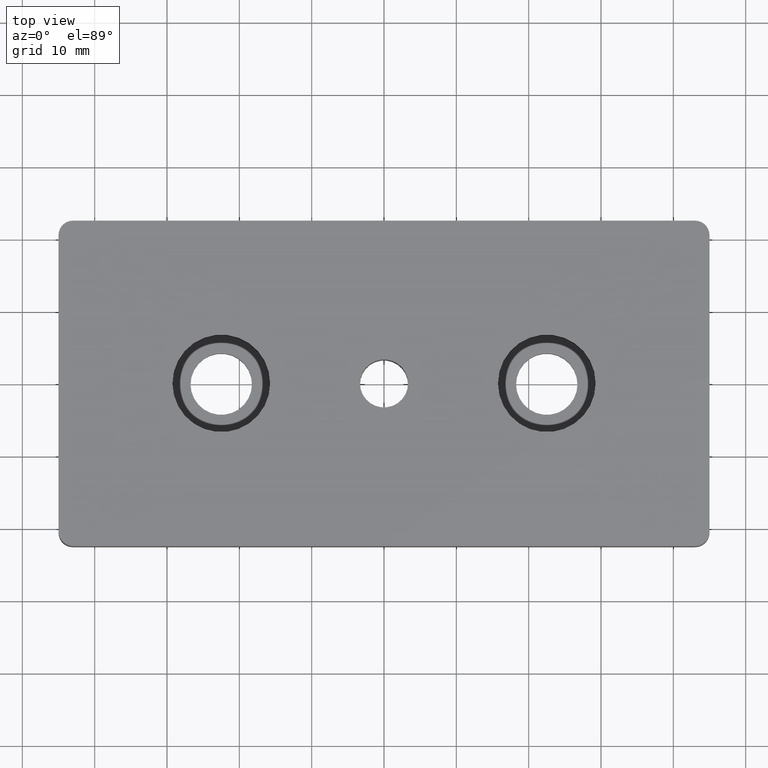
[diagram: clean part render]
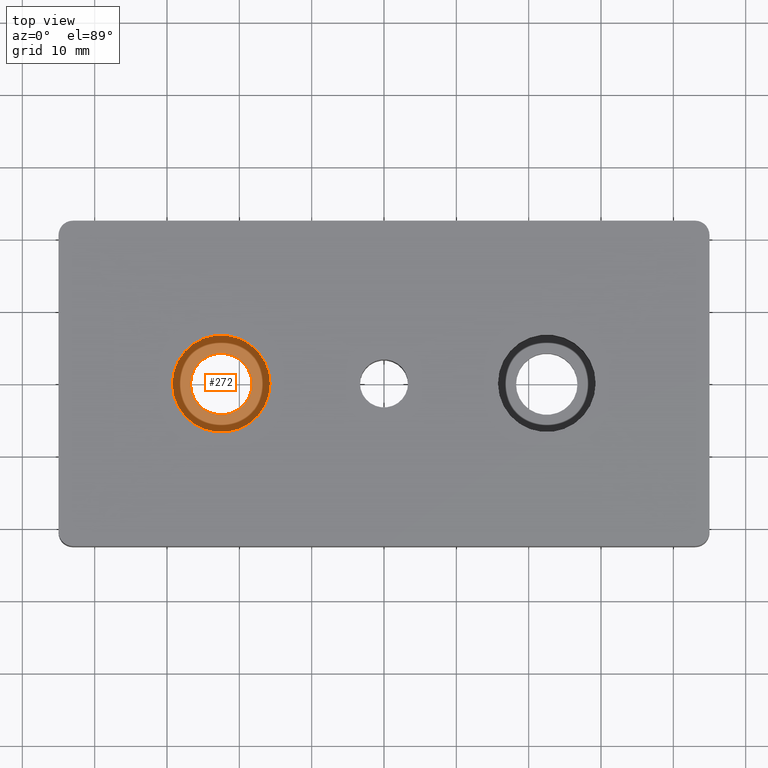
[diagram: same view with one face highlighted and labeled with its STEP entity id]
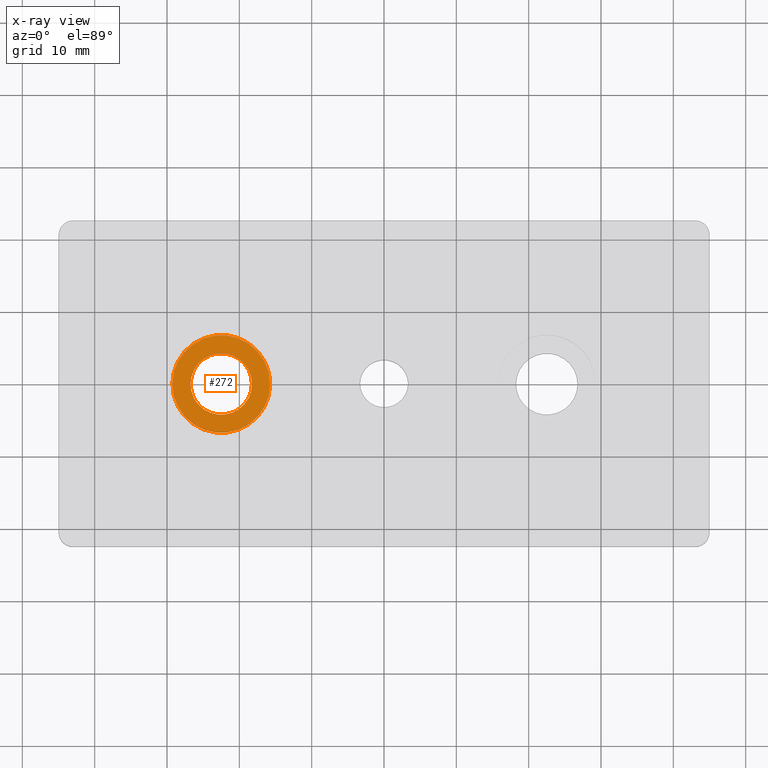
[diagram: x-ray of the same camera — body ghosted, the highlighted face saturated]
A machine part, top view. The second image highlights one B-rep face of the part: STEP entity #272.
The next image is the same camera in x-ray: the body ghosted, the highlighted face saturated — about 0% of this face is hidden behind the body in this view.
In plain terms, the highlighted planar face has unit normal (0, 0, 1).
Its self-contained STEP definition (entity closure, byte-faithful):
#48=PLANE('',#293);
#57=FACE_BOUND('',#89,.T.);
#70=FACE_OUTER_BOUND('',#88,.T.);
#88=EDGE_LOOP('',(#196));
#89=EDGE_LOOP('',(#197));
#118=CIRCLE('',#294,6.75);
#119=CIRCLE('',#295,4.25);
#136=VERTEX_POINT('',#420);
#137=VERTEX_POINT('',#422);
#162=EDGE_CURVE('',#136,#136,#118,.T.);
#163=EDGE_CURVE('',#137,#137,#119,.T.);
#196=ORIENTED_EDGE('',*,*,#162,.T.);
#197=ORIENTED_EDGE('',*,*,#163,.F.);
#272=ADVANCED_FACE('',(#70,#57),#48,.T.);
#293=AXIS2_PLACEMENT_3D('',#419,#333,#334);
#294=AXIS2_PLACEMENT_3D('',#421,#335,#336);
#295=AXIS2_PLACEMENT_3D('',#423,#337,#338);
#333=DIRECTION('center_axis',(0.,0.,1.));
#334=DIRECTION('ref_axis',(1.,0.,0.));
#335=DIRECTION('center_axis',(0.,0.,1.));
#336=DIRECTION('ref_axis',(1.,0.,0.));
#337=DIRECTION('center_axis',(0.,0.,1.));
#338=DIRECTION('ref_axis',(1.,0.,0.));
#419=CARTESIAN_POINT('Origin',(-22.5,0.,4.5));
#420=CARTESIAN_POINT('',(-15.75,0.,4.5));
#421=CARTESIAN_POINT('Origin',(-22.5,0.,4.5));
#422=CARTESIAN_POINT('',(-26.75,-5.20474889637625E-16,4.5));
#423=CARTESIAN_POINT('Origin',(-22.5,0.,4.5));